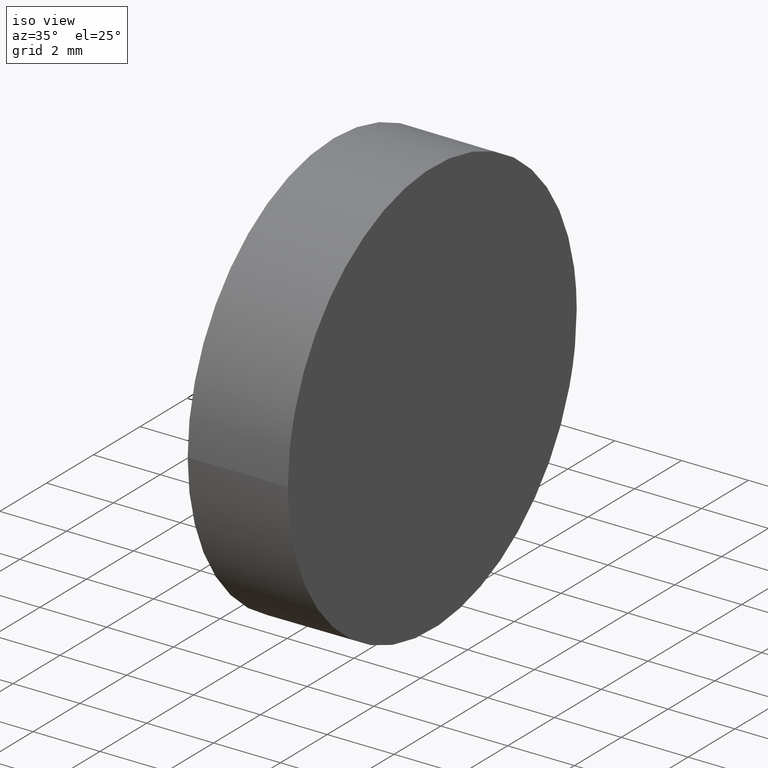
[diagram: clean part render]
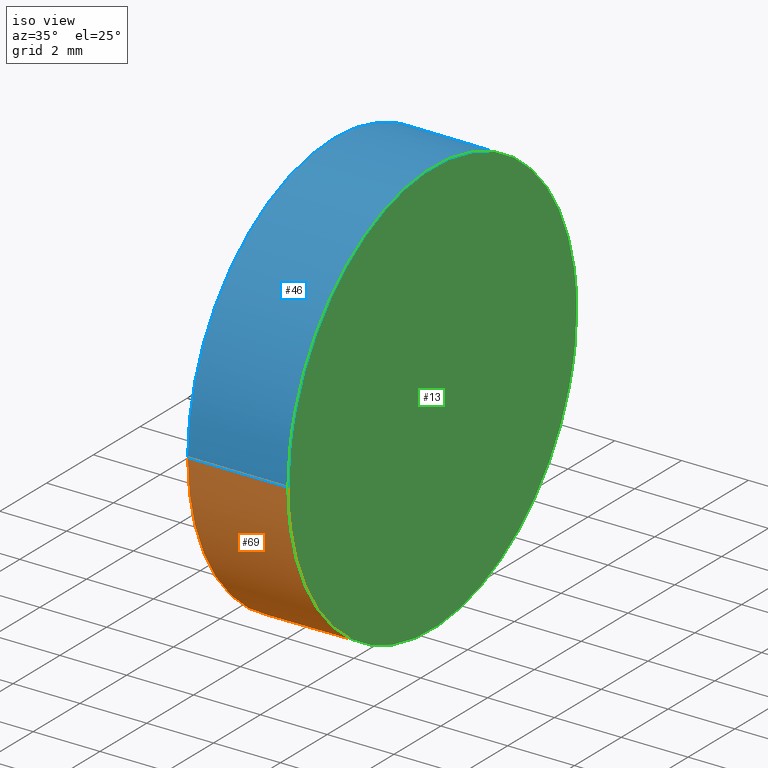
[diagram: same view with three faces highlighted in distinct colors, each labeled with its STEP entity id]
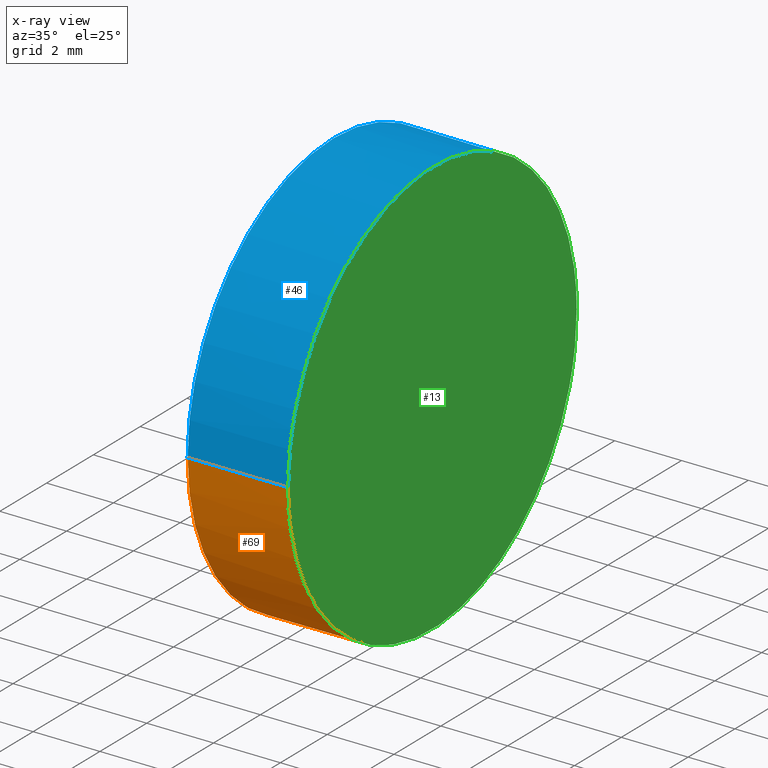
[diagram: x-ray of the same camera — body ghosted, the three highlighted faces saturated]
A machine part, iso view with three faces highlighted in distinct colors.
The next image is the same camera in x-ray (body ghosted, the three faces saturated) — at least one of them is partly hidden behind the body in this view.
Their STEP definitions:

[orange] entity #69 — the highlighted cylindrical surface (partial cylindrical patch) has radius 6.25 mm, axis along (-1, -0, -0).
#3 = EDGE_CURVE ( 'NONE', #5, #15, #96, .T. ) ;
#4 = CARTESIAN_POINT ( 'NONE',  ( 2.890914152615603200, 6.250000000000002700, -6.250000000000008000 ) ) ;
#5 = VERTEX_POINT ( 'NONE', #78 ) ;
#15 = VERTEX_POINT ( 'NONE', #63 ) ;
#16 = VERTEX_POINT ( 'NONE', #101 ) ;
#20 = FACE_OUTER_BOUND ( 'NONE', #60, .T. ) ;
#21 = AXIS2_PLACEMENT_3D ( 'NONE', #137, #64, #128 ) ;
#27 = ORIENTED_EDGE ( 'NONE', *, *, #3, .T. ) ;
#31 = DIRECTION ( 'NONE',  ( -1.000000000000000000, -1.224646799147353200E-016, -0.0000000000000000000 ) ) ;
#33 = ORIENTED_EDGE ( 'NONE', *, *, #95, .F. ) ;
#38 = ORIENTED_EDGE ( 'NONE', *, *, #89, .T. ) ;
#42 = CIRCLE ( 'NONE', #21, 6.250000000000002700 ) ;
#55 = CARTESIAN_POINT ( 'NONE',  ( 10.00000000000000000, 6.250000000000003600, 6.250000000000000900 ) ) ;
#56 = CARTESIAN_POINT ( 'NONE',  ( 2.890914152615602800, 6.250000000000002700, 6.250000000000000900 ) ) ;
#60 = EDGE_LOOP ( 'NONE', ( #33, #38, #27, #124 ) ) ;
#63 = CARTESIAN_POINT ( 'NONE',  ( 7.654042494670959600E-016, -6.250000000000002700, 6.250000000000000000 ) ) ;
#64 = DIRECTION ( 'NONE',  ( -1.000000000000000000, -1.224646799147353000E-016, 1.232595164407830900E-032 ) ) ;
#65 = CARTESIAN_POINT ( 'NONE',  ( 10.00000000000000000, 1.224646799147353300E-015, 6.250000000000000000 ) ) ;
#69 = ADVANCED_FACE ( 'NONE', ( #20 ), #71, .T. ) ;
#71 = CYLINDRICAL_SURFACE ( 'NONE', #117, 6.250000000000002700 ) ;
#75 = LINE ( 'NONE', #55, #76 ) ;
#76 = VECTOR ( 'NONE', #31, 1000.000000000000000 ) ;
#78 = CARTESIAN_POINT ( 'NONE',  ( 3.000000000000001800, -6.250000000000002700, 6.250000000000000000 ) ) ;
#81 = EDGE_CURVE ( 'NONE', #16, #15, #42, .T. ) ;
#89 = EDGE_CURVE ( 'NONE', #134, #5, #129, .T. ) ;
#95 = EDGE_CURVE ( 'NONE', #134, #16, #75, .T. ) ;
#96 = LINE ( 'NONE', #97, #126 ) ;
#97 = CARTESIAN_POINT ( 'NONE',  ( 10.00000000000000000, -6.250000000000001800, 6.250000000000000000 ) ) ;
#101 = CARTESIAN_POINT ( 'NONE',  ( -7.654042494670959600E-016, 6.250000000000002700, 6.250000000000000900 ) ) ;
#103 = CARTESIAN_POINT ( 'NONE',  ( 2.890914152615602800, 6.250000000000002700, 6.250000000000000900 ) ) ;
#108 = DIRECTION ( 'NONE',  ( 0.0000000000000000000, -1.000000000000000000, 0.0000000000000000000 ) ) ;
#115 = CARTESIAN_POINT ( 'NONE',  ( 3.000000000000001800, -6.250000000000002700, 6.250000000000000000 ) ) ;
#116 = CARTESIAN_POINT ( 'NONE',  ( 3.000000000000001800, -6.250000000000002700, -6.250000000000008000 ) ) ;
#117 = AXIS2_PLACEMENT_3D ( 'NONE', #65, #120, #108 ) ;
#120 = DIRECTION ( 'NONE',  ( -1.000000000000000000, -1.224646799147353200E-016, -0.0000000000000000000 ) ) ;
#124 = ORIENTED_EDGE ( 'NONE', *, *, #81, .F. ) ;
#126 = VECTOR ( 'NONE', #127, 1000.000000000000000 ) ;
#127 = DIRECTION ( 'NONE',  ( -1.000000000000000000, -1.224646799147353200E-016, -0.0000000000000000000 ) ) ;
#128 = DIRECTION ( 'NONE',  ( 1.224646799147353000E-016, -1.000000000000000000, 0.0000000000000000000 ) ) ;
#129 =( BOUNDED_CURVE ( )  B_SPLINE_CURVE ( 3, ( #56, #4, #116, #115 ),
 .UNSPECIFIED., .F., .F. ) 
 B_SPLINE_CURVE_WITH_KNOTS ( ( 4, 4 ),
 ( 0.0000000000000000000, 3.141592653589793100 ),
 .UNSPECIFIED. ) 
 CURVE ( )  GEOMETRIC_REPRESENTATION_ITEM ( )  RATIONAL_B_SPLINE_CURVE ( ( 1.000000000000000000, 0.3333333333333333700, 0.3333333333333333700, 1.000000000000000000 ) ) 
 REPRESENTATION_ITEM ( '' )  );
#134 = VERTEX_POINT ( 'NONE', #103 ) ;
#137 = CARTESIAN_POINT ( 'NONE',  ( 0.0000000000000000000, 0.0000000000000000000, 6.250000000000000000 ) ) ;

[blue] entity #46 — the highlighted cylindrical surface (partial cylindrical patch) has radius 6.25 mm, axis along (-1, -0, -0).
#3 = EDGE_CURVE ( 'NONE', #5, #15, #96, .T. ) ;
#5 = VERTEX_POINT ( 'NONE', #78 ) ;
#7 = CARTESIAN_POINT ( 'NONE',  ( 3.000000000000001800, -6.250000000000002700, 6.250000000000000000 ) ) ;
#8 = ORIENTED_EDGE ( 'NONE', *, *, #30, .T. ) ;
#15 = VERTEX_POINT ( 'NONE', #63 ) ;
#16 = VERTEX_POINT ( 'NONE', #101 ) ;
#18 = DIRECTION ( 'NONE',  ( -1.000000000000000000, -1.224646799147353000E-016, 1.232595164407830900E-032 ) ) ;
#29 = AXIS2_PLACEMENT_3D ( 'NONE', #98, #18, #91 ) ;
#30 = EDGE_CURVE ( 'NONE', #5, #134, #58, .T. ) ;
#31 = DIRECTION ( 'NONE',  ( -1.000000000000000000, -1.224646799147353200E-016, -0.0000000000000000000 ) ) ;
#35 = EDGE_LOOP ( 'NONE', ( #8, #57, #111, #50 ) ) ;
#46 = ADVANCED_FACE ( 'NONE', ( #133 ), #90, .T. ) ;
#50 = ORIENTED_EDGE ( 'NONE', *, *, #3, .F. ) ;
#55 = CARTESIAN_POINT ( 'NONE',  ( 10.00000000000000000, 6.250000000000003600, 6.250000000000000900 ) ) ;
#57 = ORIENTED_EDGE ( 'NONE', *, *, #95, .T. ) ;
#58 =( BOUNDED_CURVE ( )  B_SPLINE_CURVE ( 3, ( #7, #93, #138, #68 ),
 .UNSPECIFIED., .F., .T. ) 
 B_SPLINE_CURVE_WITH_KNOTS ( ( 4, 4 ),
 ( 3.141592653589793100, 6.283185307179586200 ),
 .UNSPECIFIED. ) 
 CURVE ( )  GEOMETRIC_REPRESENTATION_ITEM ( )  RATIONAL_B_SPLINE_CURVE ( ( 1.000000000000000000, 0.3333333333333333700, 0.3333333333333333700, 1.000000000000000000 ) ) 
 REPRESENTATION_ITEM ( '' )  );
#63 = CARTESIAN_POINT ( 'NONE',  ( 7.654042494670959600E-016, -6.250000000000002700, 6.250000000000000000 ) ) ;
#68 = CARTESIAN_POINT ( 'NONE',  ( 2.890914152615602800, 6.250000000000002700, 6.250000000000000900 ) ) ;
#73 = EDGE_CURVE ( 'NONE', #15, #16, #118, .T. ) ;
#75 = LINE ( 'NONE', #55, #76 ) ;
#76 = VECTOR ( 'NONE', #31, 1000.000000000000000 ) ;
#78 = CARTESIAN_POINT ( 'NONE',  ( 3.000000000000001800, -6.250000000000002700, 6.250000000000000000 ) ) ;
#79 = DIRECTION ( 'NONE',  ( 0.0000000000000000000, -1.000000000000000000, 0.0000000000000000000 ) ) ;
#82 = DIRECTION ( 'NONE',  ( -1.000000000000000000, -1.224646799147353200E-016, -0.0000000000000000000 ) ) ;
#90 = CYLINDRICAL_SURFACE ( 'NONE', #139, 6.250000000000002700 ) ;
#91 = DIRECTION ( 'NONE',  ( 1.224646799147353000E-016, -1.000000000000000000, 0.0000000000000000000 ) ) ;
#93 = CARTESIAN_POINT ( 'NONE',  ( 3.000000000000001800, -6.250000000000005300, 18.75000000000000700 ) ) ;
#95 = EDGE_CURVE ( 'NONE', #134, #16, #75, .T. ) ;
#96 = LINE ( 'NONE', #97, #126 ) ;
#97 = CARTESIAN_POINT ( 'NONE',  ( 10.00000000000000000, -6.250000000000001800, 6.250000000000000000 ) ) ;
#98 = CARTESIAN_POINT ( 'NONE',  ( 0.0000000000000000000, 0.0000000000000000000, 6.250000000000000000 ) ) ;
#101 = CARTESIAN_POINT ( 'NONE',  ( -7.654042494670959600E-016, 6.250000000000002700, 6.250000000000000900 ) ) ;
#103 = CARTESIAN_POINT ( 'NONE',  ( 2.890914152615602800, 6.250000000000002700, 6.250000000000000900 ) ) ;
#111 = ORIENTED_EDGE ( 'NONE', *, *, #73, .F. ) ;
#118 = CIRCLE ( 'NONE', #29, 6.250000000000002700 ) ;
#126 = VECTOR ( 'NONE', #127, 1000.000000000000000 ) ;
#127 = DIRECTION ( 'NONE',  ( -1.000000000000000000, -1.224646799147353200E-016, -0.0000000000000000000 ) ) ;
#133 = FACE_OUTER_BOUND ( 'NONE', #35, .T. ) ;
#134 = VERTEX_POINT ( 'NONE', #103 ) ;
#136 = CARTESIAN_POINT ( 'NONE',  ( 10.00000000000000000, 1.224646799147353300E-015, 6.250000000000000000 ) ) ;
#138 = CARTESIAN_POINT ( 'NONE',  ( 2.890914152615603200, 6.250000000000002700, 18.75000000000001100 ) ) ;
#139 = AXIS2_PLACEMENT_3D ( 'NONE', #136, #82, #79 ) ;

[green] entity #13 — the highlighted planar face has unit normal (-1, -0.0087, 0).
#4 = CARTESIAN_POINT ( 'NONE',  ( 2.890914152615603200, 6.250000000000002700, -6.250000000000008000 ) ) ;
#5 = VERTEX_POINT ( 'NONE', #78 ) ;
#7 = CARTESIAN_POINT ( 'NONE',  ( 3.000000000000001800, -6.250000000000002700, 6.250000000000000000 ) ) ;
#13 = ADVANCED_FACE ( 'NONE', ( #45 ), #17, .F. ) ;
#17 = PLANE ( 'NONE',  #114 ) ;
#30 = EDGE_CURVE ( 'NONE', #5, #134, #58, .T. ) ;
#41 = EDGE_LOOP ( 'NONE', ( #88, #94 ) ) ;
#44 = DIRECTION ( 'NONE',  ( -0.9999619230641714200, -0.008726535498366983600, 0.0000000000000000000 ) ) ;
#45 = FACE_OUTER_BOUND ( 'NONE', #41, .T. ) ;
#56 = CARTESIAN_POINT ( 'NONE',  ( 2.890914152615602800, 6.250000000000002700, 6.250000000000000900 ) ) ;
#58 =( BOUNDED_CURVE ( )  B_SPLINE_CURVE ( 3, ( #7, #93, #138, #68 ),
 .UNSPECIFIED., .F., .T. ) 
 B_SPLINE_CURVE_WITH_KNOTS ( ( 4, 4 ),
 ( 3.141592653589793100, 6.283185307179586200 ),
 .UNSPECIFIED. ) 
 CURVE ( )  GEOMETRIC_REPRESENTATION_ITEM ( )  RATIONAL_B_SPLINE_CURVE ( ( 1.000000000000000000, 0.3333333333333333700, 0.3333333333333333700, 1.000000000000000000 ) ) 
 REPRESENTATION_ITEM ( '' )  );
#68 = CARTESIAN_POINT ( 'NONE',  ( 2.890914152615602800, 6.250000000000002700, 6.250000000000000900 ) ) ;
#78 = CARTESIAN_POINT ( 'NONE',  ( 3.000000000000001800, -6.250000000000002700, 6.250000000000000000 ) ) ;
#88 = ORIENTED_EDGE ( 'NONE', *, *, #30, .F. ) ;
#89 = EDGE_CURVE ( 'NONE', #134, #5, #129, .T. ) ;
#93 = CARTESIAN_POINT ( 'NONE',  ( 3.000000000000001800, -6.250000000000005300, 18.75000000000000700 ) ) ;
#94 = ORIENTED_EDGE ( 'NONE', *, *, #89, .F. ) ;
#103 = CARTESIAN_POINT ( 'NONE',  ( 2.890914152615602800, 6.250000000000002700, 6.250000000000000900 ) ) ;
#110 = DIRECTION ( 'NONE',  ( 0.008726535498366981900, -0.9999619230641713100, 0.0000000000000000000 ) ) ;
#114 = AXIS2_PLACEMENT_3D ( 'NONE', #135, #44, #110 ) ;
#115 = CARTESIAN_POINT ( 'NONE',  ( 3.000000000000001800, -6.250000000000002700, 6.250000000000000000 ) ) ;
#116 = CARTESIAN_POINT ( 'NONE',  ( 3.000000000000001800, -6.250000000000002700, -6.250000000000008000 ) ) ;
#129 =( BOUNDED_CURVE ( )  B_SPLINE_CURVE ( 3, ( #56, #4, #116, #115 ),
 .UNSPECIFIED., .F., .F. ) 
 B_SPLINE_CURVE_WITH_KNOTS ( ( 4, 4 ),
 ( 0.0000000000000000000, 3.141592653589793100 ),
 .UNSPECIFIED. ) 
 CURVE ( )  GEOMETRIC_REPRESENTATION_ITEM ( )  RATIONAL_B_SPLINE_CURVE ( ( 1.000000000000000000, 0.3333333333333333700, 0.3333333333333333700, 1.000000000000000000 ) ) 
 REPRESENTATION_ITEM ( '' )  );
#134 = VERTEX_POINT ( 'NONE', #103 ) ;
#135 = CARTESIAN_POINT ( 'NONE',  ( 3.000000000000001800, -6.250000000000001800, 12.50000000000000000 ) ) ;
#138 = CARTESIAN_POINT ( 'NONE',  ( 2.890914152615603200, 6.250000000000002700, 18.75000000000001100 ) ) ;